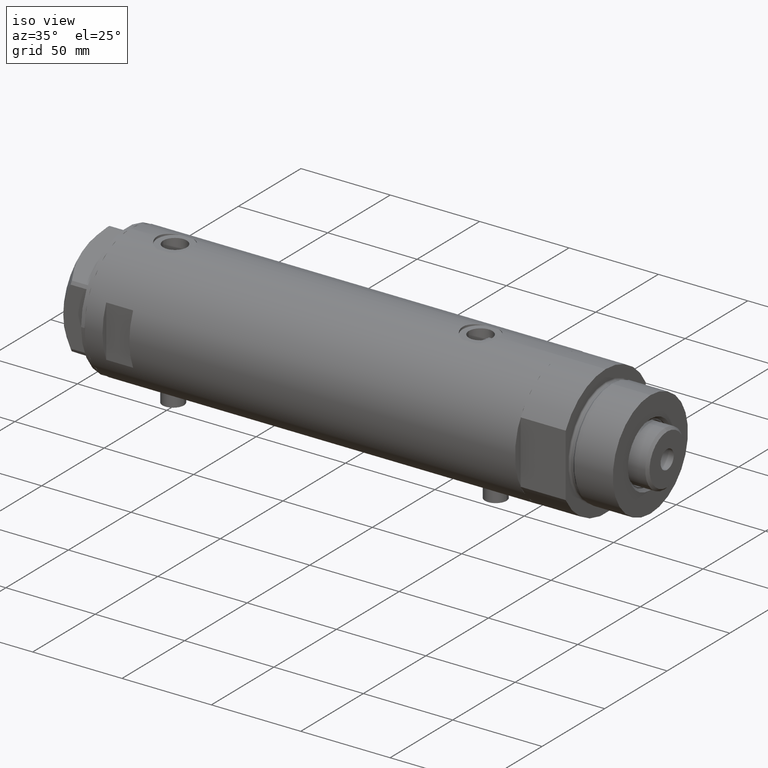
[diagram: clean part render]
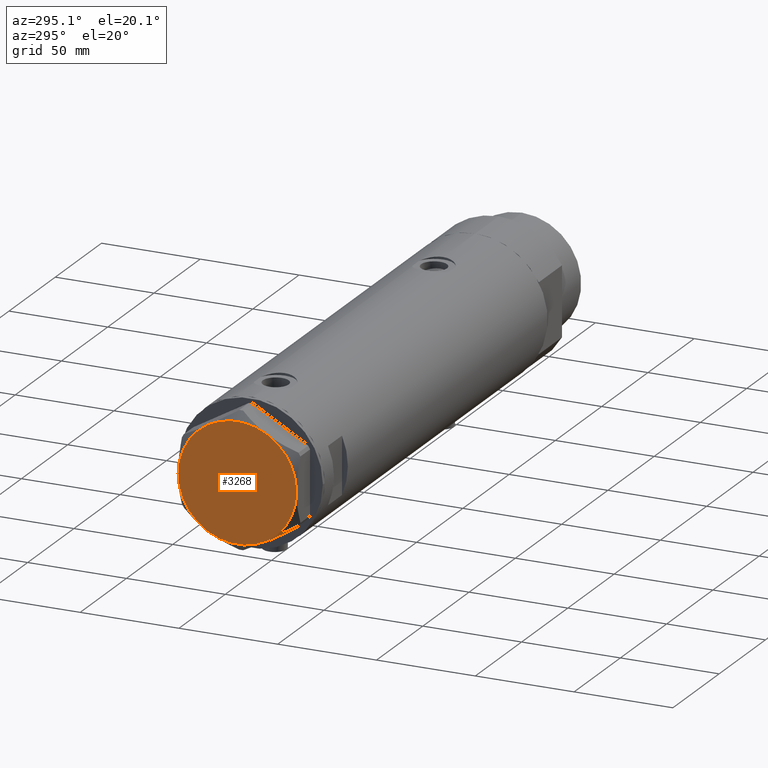
[diagram: tour spotlight — one face highlighted and labeled with its STEP entity id]
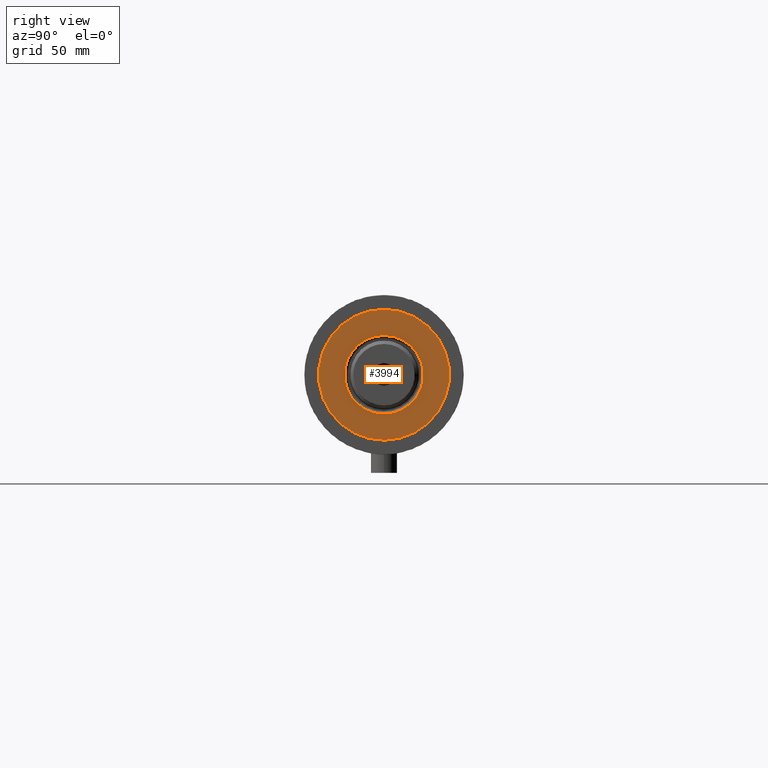
[diagram: tour spotlight — one face highlighted and labeled with its STEP entity id]
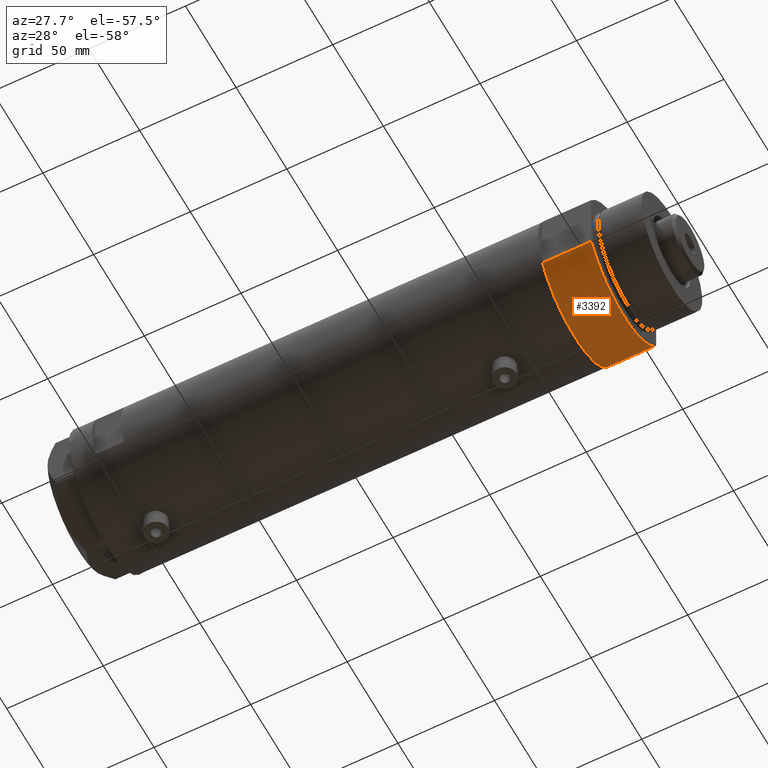
[diagram: tour spotlight — one face highlighted and labeled with its STEP entity id]
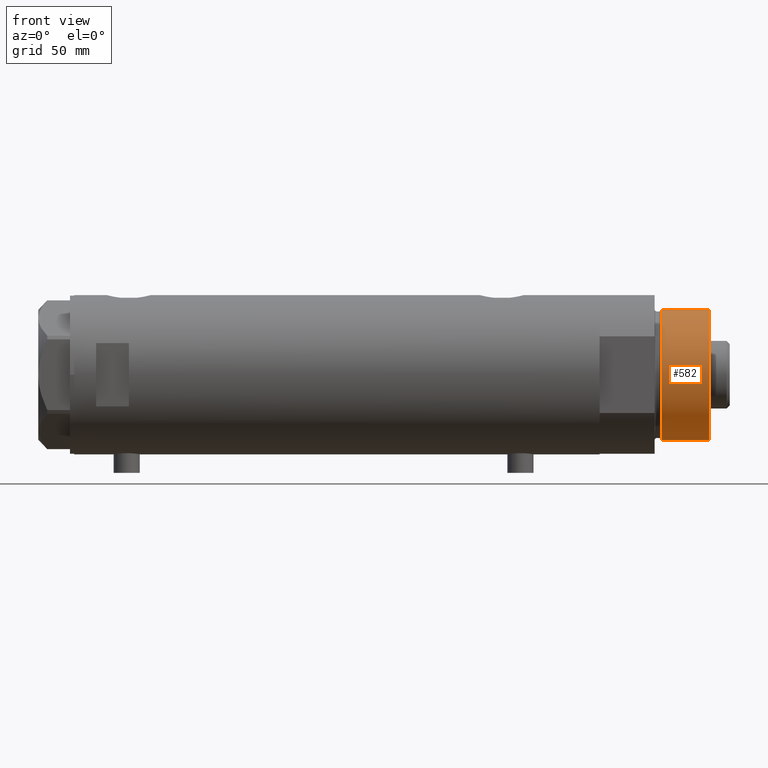
[diagram: tour spotlight — one face highlighted and labeled with its STEP entity id]
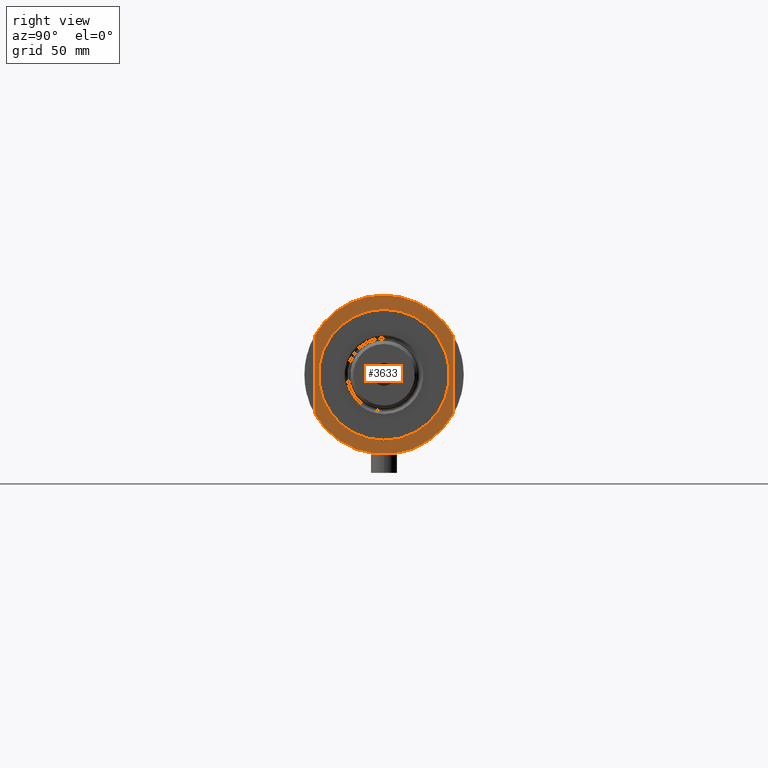
[diagram: tour spotlight — one face highlighted and labeled with its STEP entity id]
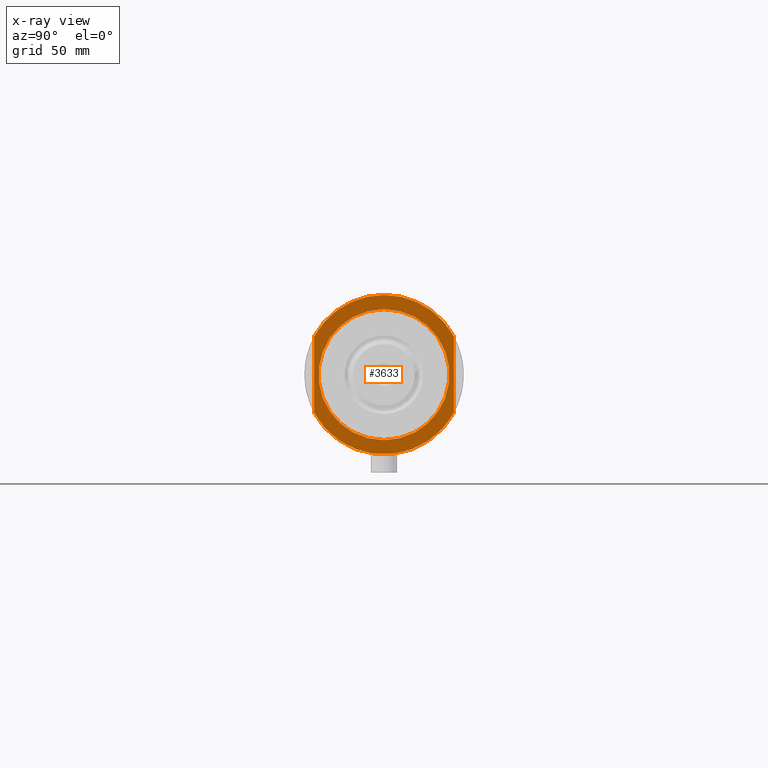
[diagram: x-ray of the same camera — body ghosted, this tour face saturated]
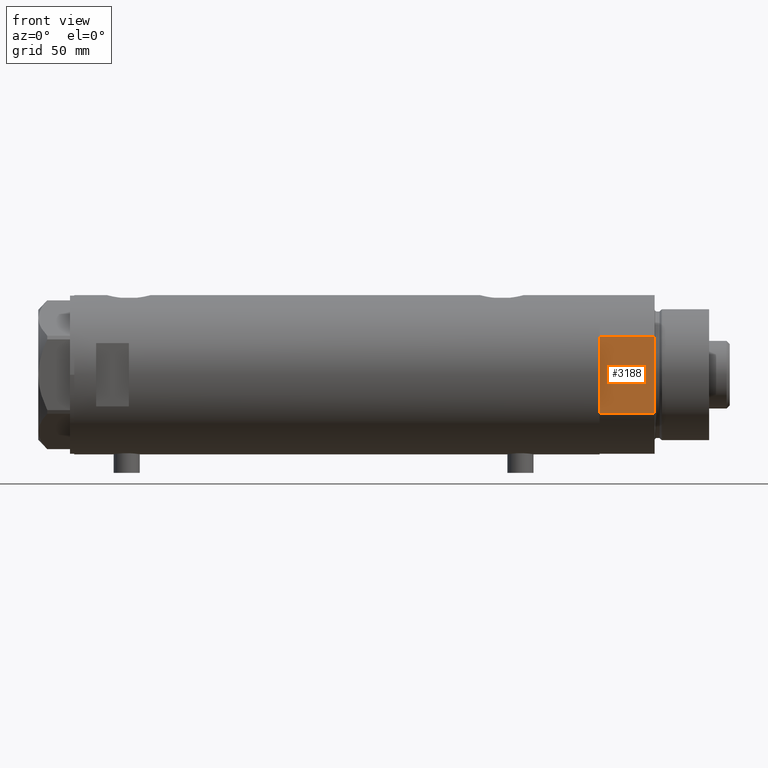
[diagram: tour spotlight — one face highlighted and labeled with its STEP entity id]
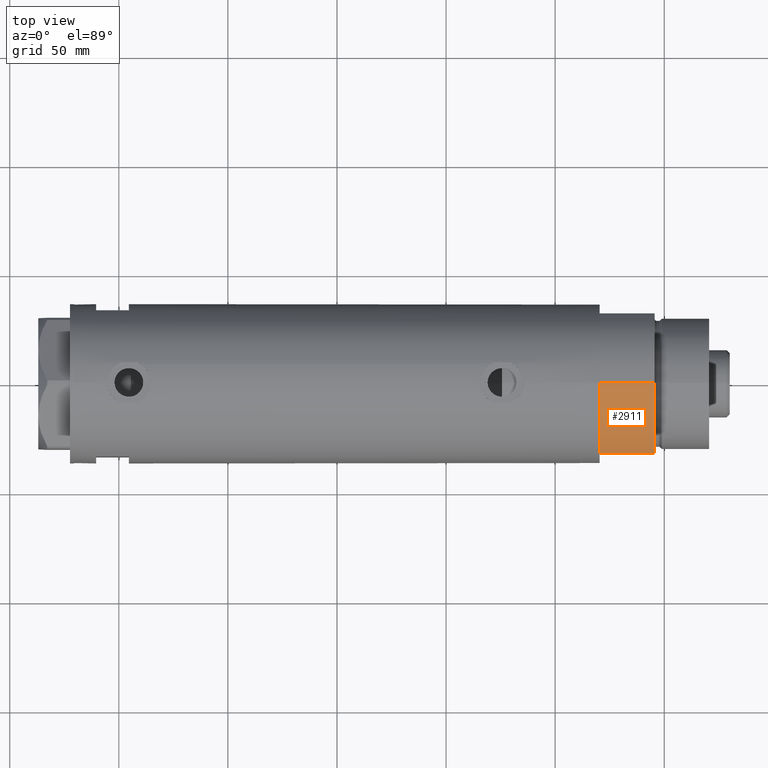
[diagram: tour spotlight — one face highlighted and labeled with its STEP entity id]
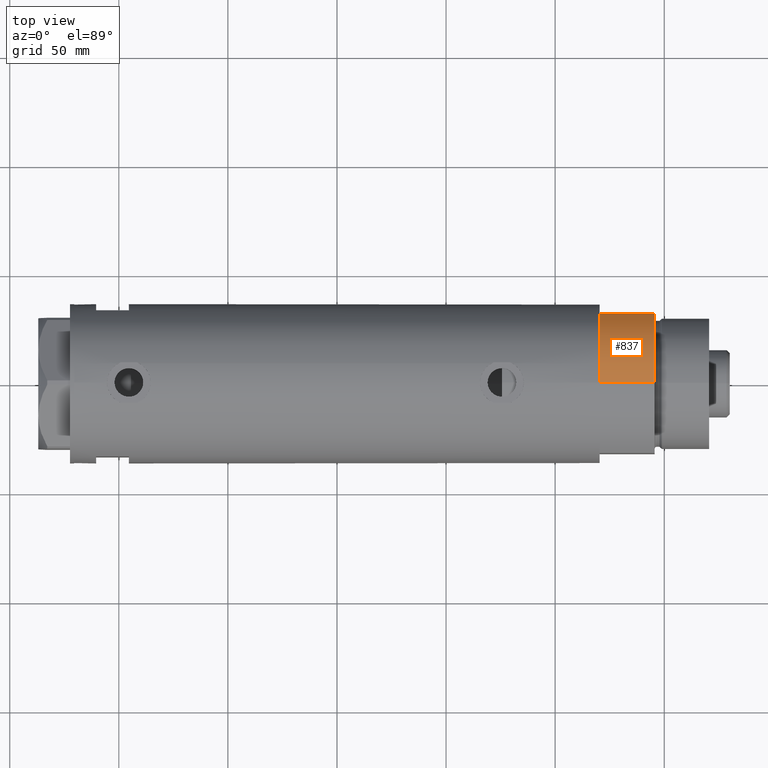
[diagram: tour spotlight — one face highlighted and labeled with its STEP entity id]
A machine part: a face-by-face anatomy tour. The part has 125 B-rep faces; the first image is the clean iso view, then the 8 largest visible faces are spotlighted one at a time (largest first), each with its STEP entity span.

Face 1 — auxiliary view, entity #3268. In plain terms, the highlighted planar face has unit normal (-1, -0, 0).
Definition (entity closure, byte-faithful):
#46 = ORIENTED_EDGE ( 'NONE', *, *, #2209, .T. ) ;
#139 = DIRECTION ( 'NONE',  ( 0.000000000000000000, 0.000000000000000000, 1.000000000000000000 ) ) ;
#252 = DIRECTION ( 'NONE',  ( 1.000000000000000000, 0.000000000000000000, 0.000000000000000000 ) ) ;
#454 = EDGE_CURVE ( 'NONE', #4172, #3018, #2763, .T. ) ;
#562 = DIRECTION ( 'NONE',  ( 0.000000000000000000, 0.000000000000000000, 1.000000000000000000 ) ) ;
#598 = DIRECTION ( 'NONE',  ( 1.000000000000000000, 0.000000000000000000, 0.000000000000000000 ) ) ;
#657 = AXIS2_PLACEMENT_3D ( 'NONE', #4175, #139, #598 ) ;
#704 = DIRECTION ( 'NONE',  ( 1.000000000000000000, 0.000000000000000000, 0.000000000000000000 ) ) ;
#715 = DIRECTION ( 'NONE',  ( 1.000000000000000000, 0.000000000000000000, -0.000000000000000000 ) ) ;
#810 = PLANE ( 'NONE',  #4206 ) ;
#900 = VERTEX_POINT ( 'NONE', #1371 ) ;
#937 = DIRECTION ( 'NONE',  ( 0.000000000000000000, 0.000000000000000000, 1.000000000000000000 ) ) ;
#953 = CARTESIAN_POINT ( 'NONE',  ( 30.00000000000000000, 9.013887592422954582E-15, 14.50000000000000000 ) ) ;
#1056 = AXIS2_PLACEMENT_3D ( 'NONE', #4607, #2429, #2381 ) ;
#1232 = ORIENTED_EDGE ( 'NONE', *, *, #454, .T. ) ;
#1270 = CIRCLE ( 'NONE', #3518, 30.00000000000000000 ) ;
#1284 = VERTEX_POINT ( 'NONE', #3390 ) ;
#1298 = EDGE_CURVE ( 'NONE', #1284, #4172, #2842, .T. ) ;
#1371 = CARTESIAN_POINT ( 'NONE',  ( -14.99999999999999645, -25.98076211353316367, 14.50000000000000000 ) ) ;
#1374 = AXIS2_PLACEMENT_3D ( 'NONE', #3853, #937, #2012 ) ;
#1449 = AXIS2_PLACEMENT_3D ( 'NONE', #4031, #3326, #704 ) ;
#1609 = ORIENTED_EDGE ( 'NONE', *, *, #1298, .T. ) ;
#1705 = DIRECTION ( 'NONE',  ( 1.000000000000000000, 0.000000000000000000, 0.000000000000000000 ) ) ;
#1755 = ORIENTED_EDGE ( 'NONE', *, *, #1854, .T. ) ;
#1797 = CARTESIAN_POINT ( 'NONE',  ( -30.00000000000000000, 0.000000000000000000, 14.50000000000000000 ) ) ;
#1854 = EDGE_CURVE ( 'NONE', #900, #1284, #4003, .T. ) ;
#1884 = CARTESIAN_POINT ( 'NONE',  ( 0.000000000000000000, 0.000000000000000000, 14.50000000000000000 ) ) ;
#2012 = DIRECTION ( 'NONE',  ( 1.000000000000000000, 0.000000000000000000, 0.000000000000000000 ) ) ;
#2166 = VERTEX_POINT ( 'NONE', #1797 ) ;
#2190 = CIRCLE ( 'NONE', #4588, 30.00000000000000000 ) ;
#2209 = EDGE_CURVE ( 'NONE', #2166, #900, #2190, .T. ) ;
#2358 = CARTESIAN_POINT ( 'NONE',  ( 0.000000000000000000, 0.000000000000000000, 14.50000000000000000 ) ) ;
#2381 = DIRECTION ( 'NONE',  ( 1.000000000000000000, 0.000000000000000000, 0.000000000000000000 ) ) ;
#2429 = DIRECTION ( 'NONE',  ( 0.000000000000000000, 0.000000000000000000, 1.000000000000000000 ) ) ;
#2521 = CARTESIAN_POINT ( 'NONE',  ( 0.000000000000000000, 0.000000000000000000, 14.50000000000000000 ) ) ;
#2533 = CARTESIAN_POINT ( 'NONE',  ( -14.99999999999999645, 25.98076211353316367, 14.50000000000000000 ) ) ;
#2545 = VERTEX_POINT ( 'NONE', #2533 ) ;
#2656 = DIRECTION ( 'NONE',  ( 0.000000000000000000, 0.000000000000000000, 1.000000000000000000 ) ) ;
#2715 = ORIENTED_EDGE ( 'NONE', *, *, #4157, .T. ) ;
#2763 = CIRCLE ( 'NONE', #1449, 30.00000000000000000 ) ;
#2842 = CIRCLE ( 'NONE', #1056, 30.00000000000000000 ) ;
#2889 = CIRCLE ( 'NONE', #657, 30.00000000000000000 ) ;
#2998 = ORIENTED_EDGE ( 'NONE', *, *, #3094, .T. ) ;
#3018 = VERTEX_POINT ( 'NONE', #3755 ) ;
#3094 = EDGE_CURVE ( 'NONE', #3018, #2545, #1270, .T. ) ;
#3268 = ADVANCED_FACE ( 'NONE', ( #3316 ), #810, .T. ) ;
#3316 = FACE_OUTER_BOUND ( 'NONE', #4494, .T. ) ;
#3326 = DIRECTION ( 'NONE',  ( 0.000000000000000000, 0.000000000000000000, 1.000000000000000000 ) ) ;
#3390 = CARTESIAN_POINT ( 'NONE',  ( 14.99999999999998757, -25.98076211353316722, 14.50000000000000000 ) ) ;
#3518 = AXIS2_PLACEMENT_3D ( 'NONE', #2358, #562, #1705 ) ;
#3755 = CARTESIAN_POINT ( 'NONE',  ( 14.99999999999999467, 25.98076211353316367, 14.50000000000000000 ) ) ;
#3853 = CARTESIAN_POINT ( 'NONE',  ( 0.000000000000000000, 0.000000000000000000, 14.50000000000000000 ) ) ;
#4003 = CIRCLE ( 'NONE', #1374, 30.00000000000000000 ) ;
#4031 = CARTESIAN_POINT ( 'NONE',  ( 0.000000000000000000, 0.000000000000000000, 14.50000000000000000 ) ) ;
#4157 = EDGE_CURVE ( 'NONE', #2545, #2166, #2889, .T. ) ;
#4172 = VERTEX_POINT ( 'NONE', #953 ) ;
#4175 = CARTESIAN_POINT ( 'NONE',  ( 0.000000000000000000, 0.000000000000000000, 14.50000000000000000 ) ) ;
#4206 = AXIS2_PLACEMENT_3D ( 'NONE', #1884, #2656, #715 ) ;
#4494 = EDGE_LOOP ( 'NONE', ( #1609, #1232, #2998, #2715, #46, #1755 ) ) ;
#4588 = AXIS2_PLACEMENT_3D ( 'NONE', #2521, #4727, #252 ) ;
#4607 = CARTESIAN_POINT ( 'NONE',  ( 0.000000000000000000, 0.000000000000000000, 14.50000000000000000 ) ) ;
#4727 = DIRECTION ( 'NONE',  ( 0.000000000000000000, 0.000000000000000000, 1.000000000000000000 ) ) ;

Face 2 — right view, entity #3994. In plain terms, the highlighted planar face has unit normal (1, 0, -0).
Definition (entity closure, byte-faithful):
#65 = CARTESIAN_POINT ( 'NONE',  ( -30.00000000000000000, 0.000000000000000000, 50.19999999999999574 ) ) ;
#111 = EDGE_CURVE ( 'NONE', #589, #585, #1762, .T. ) ;
#203 = AXIS2_PLACEMENT_3D ( 'NONE', #725, #4326, #2308 ) ;
#376 = DIRECTION ( 'NONE',  ( 0.000000000000000000, 0.000000000000000000, 1.000000000000000000 ) ) ;
#415 = DIRECTION ( 'NONE',  ( -0.000000000000000000, -0.000000000000000000, -1.000000000000000000 ) ) ;
#488 = ORIENTED_EDGE ( 'NONE', *, *, #1055, .T. ) ;
#566 = CIRCLE ( 'NONE', #3273, 18.04999999999996874 ) ;
#585 = VERTEX_POINT ( 'NONE', #65 ) ;
#589 = VERTEX_POINT ( 'NONE', #4118 ) ;
#725 = CARTESIAN_POINT ( 'NONE',  ( 0.000000000000000000, 0.000000000000000000, 50.19999999999999574 ) ) ;
#730 = DIRECTION ( 'NONE',  ( 1.000000000000000000, 0.000000000000000000, -0.000000000000000000 ) ) ;
#749 = DIRECTION ( 'NONE',  ( 0.000000000000000000, 0.000000000000000000, 1.000000000000000000 ) ) ;
#971 = CARTESIAN_POINT ( 'NONE',  ( -18.04999999999996874, 2.210487472460968951E-15, 50.19999999999999574 ) ) ;
#1055 = EDGE_CURVE ( 'NONE', #585, #589, #4320, .T. ) ;
#1276 = CIRCLE ( 'NONE', #203, 18.04999999999996874 ) ;
#1516 = AXIS2_PLACEMENT_3D ( 'NONE', #3873, #4594, #3067 ) ;
#1762 = CIRCLE ( 'NONE', #1516, 30.00000000000000000 ) ;
#1924 = CARTESIAN_POINT ( 'NONE',  ( 0.000000000000000000, 0.000000000000000000, 50.19999999999999574 ) ) ;
#1977 = AXIS2_PLACEMENT_3D ( 'NONE', #4054, #376, #730 ) ;
#2111 = EDGE_LOOP ( 'NONE', ( #4712, #3636 ) ) ;
#2180 = EDGE_LOOP ( 'NONE', ( #488, #4137 ) ) ;
#2193 = FACE_BOUND ( 'NONE', #2111, .T. ) ;
#2206 = VERTEX_POINT ( 'NONE', #971 ) ;
#2302 = AXIS2_PLACEMENT_3D ( 'NONE', #4391, #749, #4009 ) ;
#2308 = DIRECTION ( 'NONE',  ( 1.000000000000000000, 0.000000000000000000, 0.000000000000000000 ) ) ;
#2314 = CARTESIAN_POINT ( 'NONE',  ( 18.04999999999996874, 0.000000000000000000, 50.19999999999999574 ) ) ;
#2575 = PLANE ( 'NONE',  #1977 ) ;
#2615 = EDGE_CURVE ( 'NONE', #4055, #2206, #566, .T. ) ;
#2891 = EDGE_CURVE ( 'NONE', #2206, #4055, #1276, .T. ) ;
#3067 = DIRECTION ( 'NONE',  ( 1.000000000000000000, 0.000000000000000000, 0.000000000000000000 ) ) ;
#3273 = AXIS2_PLACEMENT_3D ( 'NONE', #1924, #415, #4075 ) ;
#3636 = ORIENTED_EDGE ( 'NONE', *, *, #2891, .T. ) ;
#3673 = FACE_OUTER_BOUND ( 'NONE', #2180, .T. ) ;
#3873 = CARTESIAN_POINT ( 'NONE',  ( 0.000000000000000000, 0.000000000000000000, 50.19999999999999574 ) ) ;
#3994 = ADVANCED_FACE ( 'NONE', ( #2193, #3673 ), #2575, .T. ) ;
#4009 = DIRECTION ( 'NONE',  ( 1.000000000000000000, 0.000000000000000000, 0.000000000000000000 ) ) ;
#4054 = CARTESIAN_POINT ( 'NONE',  ( 0.000000000000000000, 0.000000000000000000, 50.19999999999999574 ) ) ;
#4055 = VERTEX_POINT ( 'NONE', #2314 ) ;
#4075 = DIRECTION ( 'NONE',  ( 1.000000000000000000, 0.000000000000000000, 0.000000000000000000 ) ) ;
#4118 = CARTESIAN_POINT ( 'NONE',  ( 30.00000000000000000, 3.673940397442058389E-15, 50.19999999999999574 ) ) ;
#4137 = ORIENTED_EDGE ( 'NONE', *, *, #111, .T. ) ;
#4320 = CIRCLE ( 'NONE', #2302, 30.00000000000000000 ) ;
#4326 = DIRECTION ( 'NONE',  ( -0.000000000000000000, -0.000000000000000000, -1.000000000000000000 ) ) ;
#4391 = CARTESIAN_POINT ( 'NONE',  ( 0.000000000000000000, 0.000000000000000000, 50.19999999999999574 ) ) ;
#4594 = DIRECTION ( 'NONE',  ( 0.000000000000000000, 0.000000000000000000, 1.000000000000000000 ) ) ;
#4712 = ORIENTED_EDGE ( 'NONE', *, *, #2615, .T. ) ;

Face 3 — auxiliary view, entity #3392. In plain terms, the highlighted cylindrical surface (partial cylindrical patch) has radius 36.5 mm, axis along (-1, -0, 0).
Definition (entity closure, byte-faithful):
#192 = AXIS2_PLACEMENT_3D ( 'NONE', #720, #2884, #2524 ) ;
#240 = DIRECTION ( 'NONE',  ( -0.000000000000000000, -0.000000000000000000, 1.000000000000000000 ) ) ;
#363 = CYLINDRICAL_SURFACE ( 'NONE', #1104, 36.50000000000000000 ) ;
#382 = DIRECTION ( 'NONE',  ( -0.000000000000000000, -0.000000000000000000, -1.000000000000000000 ) ) ;
#461 = ORIENTED_EDGE ( 'NONE', *, *, #4127, .T. ) ;
#720 = CARTESIAN_POINT ( 'NONE',  ( 0.000000000000000000, 0.000000000000000000, 25.19999999999999929 ) ) ;
#746 = EDGE_CURVE ( 'NONE', #2478, #2568, #2050, .T. ) ;
#776 = DIRECTION ( 'NONE',  ( 1.000000000000000000, 0.000000000000000000, 0.000000000000000000 ) ) ;
#1101 = CARTESIAN_POINT ( 'NONE',  ( 17.55704986607943496, 32.00000000000000000, 0.000000000000000000 ) ) ;
#1102 = CARTESIAN_POINT ( 'NONE',  ( 0.000000000000000000, 0.000000000000000000, 25.19999999999999929 ) ) ;
#1103 = VECTOR ( 'NONE', #2283, 1000.000000000000000 ) ;
#1104 = AXIS2_PLACEMENT_3D ( 'NONE', #1102, #382, #1861 ) ;
#1220 = CARTESIAN_POINT ( 'NONE',  ( 0.000000000000000000, 0.000000000000000000, 0.000000000000000000 ) ) ;
#1388 = ORIENTED_EDGE ( 'NONE', *, *, #4670, .F. ) ;
#1521 = VERTEX_POINT ( 'NONE', #1101 ) ;
#1581 = LINE ( 'NONE', #3444, #1103 ) ;
#1652 = VERTEX_POINT ( 'NONE', #2685 ) ;
#1861 = DIRECTION ( 'NONE',  ( -1.000000000000000000, 0.000000000000000000, 0.000000000000000000 ) ) ;
#2050 = LINE ( 'NONE', #4664, #4077 ) ;
#2194 = CIRCLE ( 'NONE', #192, 36.50000000000000000 ) ;
#2283 = DIRECTION ( 'NONE',  ( -0.000000000000000000, -0.000000000000000000, 1.000000000000000000 ) ) ;
#2346 = EDGE_LOOP ( 'NONE', ( #1388, #3785, #461, #4024 ) ) ;
#2478 = VERTEX_POINT ( 'NONE', #3240 ) ;
#2524 = DIRECTION ( 'NONE',  ( 1.000000000000000000, 0.000000000000000000, 0.000000000000000000 ) ) ;
#2565 = FACE_OUTER_BOUND ( 'NONE', #2346, .T. ) ;
#2568 = VERTEX_POINT ( 'NONE', #4537 ) ;
#2685 = CARTESIAN_POINT ( 'NONE',  ( 17.55704986607943496, 32.00000000000000000, 25.19999999999999929 ) ) ;
#2884 = DIRECTION ( 'NONE',  ( 0.000000000000000000, 0.000000000000000000, 1.000000000000000000 ) ) ;
#3240 = CARTESIAN_POINT ( 'NONE',  ( 17.55704986607943141, -32.00000000000000000, 0.000000000000000000 ) ) ;
#3392 = ADVANCED_FACE ( 'NONE', ( #2565 ), #363, .T. ) ;
#3444 = CARTESIAN_POINT ( 'NONE',  ( 17.55704986607943141, 32.00000000000000000, 0.000000000000000000 ) ) ;
#3785 = ORIENTED_EDGE ( 'NONE', *, *, #746, .F. ) ;
#4024 = ORIENTED_EDGE ( 'NONE', *, *, #4484, .T. ) ;
#4056 = CIRCLE ( 'NONE', #4362, 36.50000000000000000 ) ;
#4077 = VECTOR ( 'NONE', #240, 1000.000000000000000 ) ;
#4098 = DIRECTION ( 'NONE',  ( 0.000000000000000000, 0.000000000000000000, 1.000000000000000000 ) ) ;
#4127 = EDGE_CURVE ( 'NONE', #2478, #1521, #4056, .T. ) ;
#4362 = AXIS2_PLACEMENT_3D ( 'NONE', #1220, #4098, #776 ) ;
#4484 = EDGE_CURVE ( 'NONE', #1521, #1652, #1581, .T. ) ;
#4537 = CARTESIAN_POINT ( 'NONE',  ( 17.55704986607943496, -32.00000000000000000, 25.19999999999999929 ) ) ;
#4664 = CARTESIAN_POINT ( 'NONE',  ( 17.55704986607943141, -32.00000000000000000, 0.000000000000000000 ) ) ;
#4670 = EDGE_CURVE ( 'NONE', #2568, #1652, #2194, .T. ) ;

Face 4 — front view, entity #582. In plain terms, the highlighted cylindrical surface (partial cylindrical patch) has radius 30 mm, axis along (-1, -0, 0).
Definition (entity closure, byte-faithful):
#65 = CARTESIAN_POINT ( 'NONE',  ( -30.00000000000000000, 0.000000000000000000, 50.19999999999999574 ) ) ;
#86 = FACE_OUTER_BOUND ( 'NONE', #1724, .T. ) ;
#282 = DIRECTION ( 'NONE',  ( -0.000000000000000000, -0.000000000000000000, -1.000000000000000000 ) ) ;
#299 = ORIENTED_EDGE ( 'NONE', *, *, #4728, .F. ) ;
#464 = EDGE_CURVE ( 'NONE', #585, #1903, #2574, .T. ) ;
#521 = DIRECTION ( 'NONE',  ( -1.000000000000000000, 0.000000000000000000, 0.000000000000000000 ) ) ;
#544 = CARTESIAN_POINT ( 'NONE',  ( 0.000000000000000000, 0.000000000000000000, 50.19999999999999574 ) ) ;
#582 = ADVANCED_FACE ( 'NONE', ( #86 ), #3396, .T. ) ;
#585 = VERTEX_POINT ( 'NONE', #65 ) ;
#589 = VERTEX_POINT ( 'NONE', #4118 ) ;
#749 = DIRECTION ( 'NONE',  ( 0.000000000000000000, 0.000000000000000000, 1.000000000000000000 ) ) ;
#1019 = EDGE_CURVE ( 'NONE', #1903, #3428, #3624, .T. ) ;
#1055 = EDGE_CURVE ( 'NONE', #585, #589, #4320, .T. ) ;
#1257 = ORIENTED_EDGE ( 'NONE', *, *, #464, .T. ) ;
#1303 = AXIS2_PLACEMENT_3D ( 'NONE', #4070, #4776, #2617 ) ;
#1482 = DIRECTION ( 'NONE',  ( -0.000000000000000000, -0.000000000000000000, -1.000000000000000000 ) ) ;
#1670 = CARTESIAN_POINT ( 'NONE',  ( -30.00000000000000000, 0.000000000000000000, 28.57384048104054486 ) ) ;
#1724 = EDGE_LOOP ( 'NONE', ( #299, #2027, #1257, #2789 ) ) ;
#1903 = VERTEX_POINT ( 'NONE', #1670 ) ;
#2027 = ORIENTED_EDGE ( 'NONE', *, *, #1055, .F. ) ;
#2207 = CARTESIAN_POINT ( 'NONE',  ( 30.00000000000000000, 3.673940397442058389E-15, 50.19999999999999574 ) ) ;
#2297 = AXIS2_PLACEMENT_3D ( 'NONE', #544, #2391, #521 ) ;
#2302 = AXIS2_PLACEMENT_3D ( 'NONE', #4391, #749, #4009 ) ;
#2391 = DIRECTION ( 'NONE',  ( -0.000000000000000000, -0.000000000000000000, -1.000000000000000000 ) ) ;
#2498 = LINE ( 'NONE', #2207, #3040 ) ;
#2574 = LINE ( 'NONE', #4051, #4386 ) ;
#2617 = DIRECTION ( 'NONE',  ( 1.000000000000000000, 0.000000000000000000, 0.000000000000000000 ) ) ;
#2789 = ORIENTED_EDGE ( 'NONE', *, *, #1019, .T. ) ;
#3040 = VECTOR ( 'NONE', #282, 1000.000000000000000 ) ;
#3396 = CYLINDRICAL_SURFACE ( 'NONE', #2297, 30.00000000000000000 ) ;
#3428 = VERTEX_POINT ( 'NONE', #4599 ) ;
#3624 = CIRCLE ( 'NONE', #1303, 30.00000000000000000 ) ;
#4009 = DIRECTION ( 'NONE',  ( 1.000000000000000000, 0.000000000000000000, 0.000000000000000000 ) ) ;
#4051 = CARTESIAN_POINT ( 'NONE',  ( -30.00000000000000000, 0.000000000000000000, 50.19999999999999574 ) ) ;
#4070 = CARTESIAN_POINT ( 'NONE',  ( 0.000000000000000000, 0.000000000000000000, 28.57384048104054486 ) ) ;
#4118 = CARTESIAN_POINT ( 'NONE',  ( 30.00000000000000000, 3.673940397442058389E-15, 50.19999999999999574 ) ) ;
#4320 = CIRCLE ( 'NONE', #2302, 30.00000000000000000 ) ;
#4386 = VECTOR ( 'NONE', #1482, 1000.000000000000000 ) ;
#4391 = CARTESIAN_POINT ( 'NONE',  ( 0.000000000000000000, 0.000000000000000000, 50.19999999999999574 ) ) ;
#4599 = CARTESIAN_POINT ( 'NONE',  ( 30.00000000000000000, 3.673940397442058389E-15, 28.57384048104054486 ) ) ;
#4728 = EDGE_CURVE ( 'NONE', #589, #3428, #2498, .T. ) ;
#4776 = DIRECTION ( 'NONE',  ( -0.000000000000000000, -0.000000000000000000, 1.000000000000000000 ) ) ;

Face 5 — right view, entity #3633. An x-ray twin of the same camera follows (body ghosted, this face saturated) — the face is partly hidden behind the body. In plain terms, the highlighted planar face has unit normal (1, 0, -0).
Definition (entity closure, byte-faithful):
#192 = AXIS2_PLACEMENT_3D ( 'NONE', #720, #2884, #2524 ) ;
#205 = DIRECTION ( 'NONE',  ( 1.000000000000000000, 0.000000000000000000, 0.000000000000000000 ) ) ;
#254 = VERTEX_POINT ( 'NONE', #1351 ) ;
#275 = CARTESIAN_POINT ( 'NONE',  ( 0.000000000000000000, 0.000000000000000000, 25.19999999999999929 ) ) ;
#292 = DIRECTION ( 'NONE',  ( 1.000000000000000000, 0.000000000000000000, 0.000000000000000000 ) ) ;
#320 = ORIENTED_EDGE ( 'NONE', *, *, #2614, .F. ) ;
#556 = EDGE_LOOP ( 'NONE', ( #4636, #1649 ) ) ;
#560 = CARTESIAN_POINT ( 'NONE',  ( -17.55704986607943496, -32.00000000000000000, 25.19999999999999929 ) ) ;
#581 = AXIS2_PLACEMENT_3D ( 'NONE', #3194, #1253, #292 ) ;
#719 = ORIENTED_EDGE ( 'NONE', *, *, #1225, .F. ) ;
#720 = CARTESIAN_POINT ( 'NONE',  ( 0.000000000000000000, 0.000000000000000000, 25.19999999999999929 ) ) ;
#785 = DIRECTION ( 'NONE',  ( 1.000000000000000000, 0.000000000000000000, -0.000000000000000000 ) ) ;
#1131 = FACE_OUTER_BOUND ( 'NONE', #1939, .T. ) ;
#1161 = DIRECTION ( 'NONE',  ( -1.000000000000000000, -0.000000000000000000, -0.000000000000000000 ) ) ;
#1225 = EDGE_CURVE ( 'NONE', #3539, #1652, #3079, .T. ) ;
#1253 = DIRECTION ( 'NONE',  ( 0.000000000000000000, 0.000000000000000000, 1.000000000000000000 ) ) ;
#1265 = VERTEX_POINT ( 'NONE', #1920 ) ;
#1305 = VERTEX_POINT ( 'NONE', #1725 ) ;
#1351 = CARTESIAN_POINT ( 'NONE',  ( 30.00000000000000355, 0.000000000000000000, 25.19999999999999929 ) ) ;
#1356 = EDGE_CURVE ( 'NONE', #1265, #254, #2525, .T. ) ;
#1380 = DIRECTION ( 'NONE',  ( 1.000000000000000000, 0.000000000000000000, 0.000000000000000000 ) ) ;
#1400 = DIRECTION ( 'NONE',  ( -0.000000000000000000, -0.000000000000000000, -1.000000000000000000 ) ) ;
#1587 = AXIS2_PLACEMENT_3D ( 'NONE', #4697, #1400, #1380 ) ;
#1649 = ORIENTED_EDGE ( 'NONE', *, *, #1356, .T. ) ;
#1652 = VERTEX_POINT ( 'NONE', #2685 ) ;
#1725 = CARTESIAN_POINT ( 'NONE',  ( -36.50000000000000000, 0.000000000000000000, 25.19999999999999929 ) ) ;
#1886 = FACE_BOUND ( 'NONE', #556, .T. ) ;
#1891 = CIRCLE ( 'NONE', #581, 36.50000000000000000 ) ;
#1892 = DIRECTION ( 'NONE',  ( 1.000000000000000000, 0.000000000000000000, 0.000000000000000000 ) ) ;
#1920 = CARTESIAN_POINT ( 'NONE',  ( -30.00000000000000355, 3.673940397442059178E-15, 25.19999999999999929 ) ) ;
#1935 = DIRECTION ( 'NONE',  ( 0.000000000000000000, 0.000000000000000000, 1.000000000000000000 ) ) ;
#1939 = EDGE_LOOP ( 'NONE', ( #320, #4254, #719, #4592, #2792 ) ) ;
#1975 = CARTESIAN_POINT ( 'NONE',  ( -17.55704986607943141, -32.00000000000000000, 25.19999999999999929 ) ) ;
#2039 = VERTEX_POINT ( 'NONE', #560 ) ;
#2194 = CIRCLE ( 'NONE', #192, 36.50000000000000000 ) ;
#2442 = CIRCLE ( 'NONE', #1587, 30.00000000000000355 ) ;
#2524 = DIRECTION ( 'NONE',  ( 1.000000000000000000, 0.000000000000000000, 0.000000000000000000 ) ) ;
#2525 = CIRCLE ( 'NONE', #3922, 30.00000000000000355 ) ;
#2568 = VERTEX_POINT ( 'NONE', #4537 ) ;
#2614 = EDGE_CURVE ( 'NONE', #2568, #2039, #4147, .T. ) ;
#2618 = CARTESIAN_POINT ( 'NONE',  ( 0.000000000000000000, 0.000000000000000000, 25.19999999999999929 ) ) ;
#2633 = PLANE ( 'NONE',  #4758 ) ;
#2659 = CARTESIAN_POINT ( 'NONE',  ( 0.000000000000000000, 0.000000000000000000, 25.19999999999999929 ) ) ;
#2665 = DIRECTION ( 'NONE',  ( 0.000000000000000000, 0.000000000000000000, 1.000000000000000000 ) ) ;
#2685 = CARTESIAN_POINT ( 'NONE',  ( 17.55704986607943496, 32.00000000000000000, 25.19999999999999929 ) ) ;
#2792 = ORIENTED_EDGE ( 'NONE', *, *, #3775, .T. ) ;
#2884 = DIRECTION ( 'NONE',  ( 0.000000000000000000, 0.000000000000000000, 1.000000000000000000 ) ) ;
#3005 = EDGE_CURVE ( 'NONE', #3539, #1305, #3350, .T. ) ;
#3026 = DIRECTION ( 'NONE',  ( 1.000000000000000000, 0.000000000000000000, 0.000000000000000000 ) ) ;
#3079 = LINE ( 'NONE', #4557, #4618 ) ;
#3194 = CARTESIAN_POINT ( 'NONE',  ( 0.000000000000000000, 0.000000000000000000, 25.19999999999999929 ) ) ;
#3350 = CIRCLE ( 'NONE', #4518, 36.50000000000000000 ) ;
#3492 = DIRECTION ( 'NONE',  ( -0.000000000000000000, -0.000000000000000000, -1.000000000000000000 ) ) ;
#3539 = VERTEX_POINT ( 'NONE', #3997 ) ;
#3633 = ADVANCED_FACE ( 'NONE', ( #1886, #1131 ), #2633, .T. ) ;
#3741 = EDGE_CURVE ( 'NONE', #254, #1265, #2442, .T. ) ;
#3775 = EDGE_CURVE ( 'NONE', #1305, #2039, #1891, .T. ) ;
#3922 = AXIS2_PLACEMENT_3D ( 'NONE', #275, #3492, #205 ) ;
#3997 = CARTESIAN_POINT ( 'NONE',  ( -17.55704986607943496, 32.00000000000000000, 25.19999999999999929 ) ) ;
#4147 = LINE ( 'NONE', #1975, #4742 ) ;
#4254 = ORIENTED_EDGE ( 'NONE', *, *, #4670, .T. ) ;
#4518 = AXIS2_PLACEMENT_3D ( 'NONE', #2618, #2665, #3026 ) ;
#4537 = CARTESIAN_POINT ( 'NONE',  ( 17.55704986607943496, -32.00000000000000000, 25.19999999999999929 ) ) ;
#4557 = CARTESIAN_POINT ( 'NONE',  ( -17.55704986607943141, 32.00000000000000000, 25.19999999999999929 ) ) ;
#4592 = ORIENTED_EDGE ( 'NONE', *, *, #3005, .T. ) ;
#4618 = VECTOR ( 'NONE', #1892, 1000.000000000000000 ) ;
#4636 = ORIENTED_EDGE ( 'NONE', *, *, #3741, .T. ) ;
#4670 = EDGE_CURVE ( 'NONE', #2568, #1652, #2194, .T. ) ;
#4697 = CARTESIAN_POINT ( 'NONE',  ( 0.000000000000000000, 0.000000000000000000, 25.19999999999999929 ) ) ;
#4742 = VECTOR ( 'NONE', #1161, 1000.000000000000000 ) ;
#4758 = AXIS2_PLACEMENT_3D ( 'NONE', #2659, #1935, #785 ) ;

Face 6 — front view, entity #3188. In plain terms, the highlighted planar face has unit normal (-0, 1, 0).
Definition (entity closure, byte-faithful):
#110 = AXIS2_PLACEMENT_3D ( 'NONE', #1455, #341, #1820 ) ;
#123 = CARTESIAN_POINT ( 'NONE',  ( -17.55704986607943141, -32.00000000000000000, 0.000000000000000000 ) ) ;
#134 = EDGE_LOOP ( 'NONE', ( #2661, #2735, #731, #1751, #3893 ) ) ;
#240 = DIRECTION ( 'NONE',  ( -0.000000000000000000, -0.000000000000000000, 1.000000000000000000 ) ) ;
#279 = PLANE ( 'NONE',  #110 ) ;
#341 = DIRECTION ( 'NONE',  ( -0.000000000000000000, 1.000000000000000000, 0.000000000000000000 ) ) ;
#436 = VERTEX_POINT ( 'NONE', #4763 ) ;
#560 = CARTESIAN_POINT ( 'NONE',  ( -17.55704986607943496, -32.00000000000000000, 25.19999999999999929 ) ) ;
#731 = ORIENTED_EDGE ( 'NONE', *, *, #3776, .F. ) ;
#746 = EDGE_CURVE ( 'NONE', #2478, #2568, #2050, .T. ) ;
#1161 = DIRECTION ( 'NONE',  ( -1.000000000000000000, -0.000000000000000000, -0.000000000000000000 ) ) ;
#1358 = DIRECTION ( 'NONE',  ( -1.000000000000000000, -0.000000000000000000, -0.000000000000000000 ) ) ;
#1455 = CARTESIAN_POINT ( 'NONE',  ( -17.55704986607943141, -32.00000000000000000, 0.000000000000000000 ) ) ;
#1751 = ORIENTED_EDGE ( 'NONE', *, *, #1773, .F. ) ;
#1773 = EDGE_CURVE ( 'NONE', #2478, #3654, #4673, .T. ) ;
#1820 = DIRECTION ( 'NONE',  ( 0.000000000000000000, -0.000000000000000000, 1.000000000000000000 ) ) ;
#1975 = CARTESIAN_POINT ( 'NONE',  ( -17.55704986607943141, -32.00000000000000000, 25.19999999999999929 ) ) ;
#1989 = LINE ( 'NONE', #123, #3289 ) ;
#2038 = VECTOR ( 'NONE', #3419, 1000.000000000000000 ) ;
#2039 = VERTEX_POINT ( 'NONE', #560 ) ;
#2050 = LINE ( 'NONE', #4664, #4077 ) ;
#2478 = VERTEX_POINT ( 'NONE', #3240 ) ;
#2555 = EDGE_CURVE ( 'NONE', #436, #2039, #3060, .T. ) ;
#2568 = VERTEX_POINT ( 'NONE', #4537 ) ;
#2614 = EDGE_CURVE ( 'NONE', #2568, #2039, #4147, .T. ) ;
#2661 = ORIENTED_EDGE ( 'NONE', *, *, #2614, .T. ) ;
#2734 = DIRECTION ( 'NONE',  ( -1.000000000000000000, -0.000000000000000000, -0.000000000000000000 ) ) ;
#2735 = ORIENTED_EDGE ( 'NONE', *, *, #2555, .F. ) ;
#2806 = CARTESIAN_POINT ( 'NONE',  ( -17.55704986607943141, -32.00000000000000000, 0.000000000000000000 ) ) ;
#2863 = FACE_OUTER_BOUND ( 'NONE', #134, .T. ) ;
#3060 = LINE ( 'NONE', #3813, #2038 ) ;
#3188 = ADVANCED_FACE ( 'NONE', ( #2863 ), #279, .F. ) ;
#3240 = CARTESIAN_POINT ( 'NONE',  ( 17.55704986607943141, -32.00000000000000000, 0.000000000000000000 ) ) ;
#3289 = VECTOR ( 'NONE', #2734, 1000.000000000000000 ) ;
#3303 = VECTOR ( 'NONE', #1358, 1000.000000000000000 ) ;
#3419 = DIRECTION ( 'NONE',  ( -0.000000000000000000, -0.000000000000000000, 1.000000000000000000 ) ) ;
#3654 = VERTEX_POINT ( 'NONE', #4135 ) ;
#3776 = EDGE_CURVE ( 'NONE', #3654, #436, #1989, .T. ) ;
#3813 = CARTESIAN_POINT ( 'NONE',  ( -17.55704986607943141, -32.00000000000000000, 0.000000000000000000 ) ) ;
#3893 = ORIENTED_EDGE ( 'NONE', *, *, #746, .T. ) ;
#4077 = VECTOR ( 'NONE', #240, 1000.000000000000000 ) ;
#4135 = CARTESIAN_POINT ( 'NONE',  ( 0.000000000000000000, -32.00000000000000000, 0.000000000000000000 ) ) ;
#4147 = LINE ( 'NONE', #1975, #4742 ) ;
#4537 = CARTESIAN_POINT ( 'NONE',  ( 17.55704986607943496, -32.00000000000000000, 25.19999999999999929 ) ) ;
#4664 = CARTESIAN_POINT ( 'NONE',  ( 17.55704986607943141, -32.00000000000000000, 0.000000000000000000 ) ) ;
#4673 = LINE ( 'NONE', #2806, #3303 ) ;
#4742 = VECTOR ( 'NONE', #1161, 1000.000000000000000 ) ;
#4763 = CARTESIAN_POINT ( 'NONE',  ( -17.55704986607943496, -32.00000000000000000, 0.000000000000000000 ) ) ;

Face 7 — top view, entity #2911. In plain terms, the highlighted cylindrical surface (partial cylindrical patch) has radius 36.5 mm, axis along (-1, -0, 0).
Definition (entity closure, byte-faithful):
#30 = DIRECTION ( 'NONE',  ( -0.000000000000000000, -0.000000000000000000, -1.000000000000000000 ) ) ;
#195 = LINE ( 'NONE', #605, #3229 ) ;
#292 = DIRECTION ( 'NONE',  ( 1.000000000000000000, 0.000000000000000000, 0.000000000000000000 ) ) ;
#411 = DIRECTION ( 'NONE',  ( -1.000000000000000000, 0.000000000000000000, 0.000000000000000000 ) ) ;
#436 = VERTEX_POINT ( 'NONE', #4763 ) ;
#515 = DIRECTION ( 'NONE',  ( 1.000000000000000000, 0.000000000000000000, 0.000000000000000000 ) ) ;
#560 = CARTESIAN_POINT ( 'NONE',  ( -17.55704986607943496, -32.00000000000000000, 25.19999999999999929 ) ) ;
#581 = AXIS2_PLACEMENT_3D ( 'NONE', #3194, #1253, #292 ) ;
#605 = CARTESIAN_POINT ( 'NONE',  ( -36.50000000000000000, 0.000000000000000000, 25.19999999999999929 ) ) ;
#782 = ORIENTED_EDGE ( 'NONE', *, *, #3028, .T. ) ;
#961 = AXIS2_PLACEMENT_3D ( 'NONE', #1848, #30, #411 ) ;
#1182 = CARTESIAN_POINT ( 'NONE',  ( 0.000000000000000000, 0.000000000000000000, 0.000000000000000000 ) ) ;
#1253 = DIRECTION ( 'NONE',  ( 0.000000000000000000, 0.000000000000000000, 1.000000000000000000 ) ) ;
#1305 = VERTEX_POINT ( 'NONE', #1725 ) ;
#1621 = ORIENTED_EDGE ( 'NONE', *, *, #3775, .F. ) ;
#1725 = CARTESIAN_POINT ( 'NONE',  ( -36.50000000000000000, 0.000000000000000000, 25.19999999999999929 ) ) ;
#1800 = EDGE_CURVE ( 'NONE', #1305, #2069, #195, .T. ) ;
#1848 = CARTESIAN_POINT ( 'NONE',  ( 0.000000000000000000, 0.000000000000000000, 25.19999999999999929 ) ) ;
#1891 = CIRCLE ( 'NONE', #581, 36.50000000000000000 ) ;
#2038 = VECTOR ( 'NONE', #3419, 1000.000000000000000 ) ;
#2039 = VERTEX_POINT ( 'NONE', #560 ) ;
#2069 = VERTEX_POINT ( 'NONE', #2408 ) ;
#2129 = CIRCLE ( 'NONE', #4754, 36.50000000000000000 ) ;
#2284 = ORIENTED_EDGE ( 'NONE', *, *, #1800, .T. ) ;
#2333 = FACE_OUTER_BOUND ( 'NONE', #4143, .T. ) ;
#2408 = CARTESIAN_POINT ( 'NONE',  ( -36.50000000000000000, 0.000000000000000000, 0.000000000000000000 ) ) ;
#2555 = EDGE_CURVE ( 'NONE', #436, #2039, #3060, .T. ) ;
#2815 = DIRECTION ( 'NONE',  ( 0.000000000000000000, 0.000000000000000000, 1.000000000000000000 ) ) ;
#2911 = ADVANCED_FACE ( 'NONE', ( #2333 ), #4072, .T. ) ;
#3028 = EDGE_CURVE ( 'NONE', #2069, #436, #2129, .T. ) ;
#3060 = LINE ( 'NONE', #3813, #2038 ) ;
#3194 = CARTESIAN_POINT ( 'NONE',  ( 0.000000000000000000, 0.000000000000000000, 25.19999999999999929 ) ) ;
#3229 = VECTOR ( 'NONE', #3533, 1000.000000000000000 ) ;
#3419 = DIRECTION ( 'NONE',  ( -0.000000000000000000, -0.000000000000000000, 1.000000000000000000 ) ) ;
#3533 = DIRECTION ( 'NONE',  ( -0.000000000000000000, -0.000000000000000000, -1.000000000000000000 ) ) ;
#3775 = EDGE_CURVE ( 'NONE', #1305, #2039, #1891, .T. ) ;
#3813 = CARTESIAN_POINT ( 'NONE',  ( -17.55704986607943141, -32.00000000000000000, 0.000000000000000000 ) ) ;
#4072 = CYLINDRICAL_SURFACE ( 'NONE', #961, 36.50000000000000000 ) ;
#4143 = EDGE_LOOP ( 'NONE', ( #1621, #2284, #782, #4364 ) ) ;
#4364 = ORIENTED_EDGE ( 'NONE', *, *, #2555, .T. ) ;
#4754 = AXIS2_PLACEMENT_3D ( 'NONE', #1182, #2815, #515 ) ;
#4763 = CARTESIAN_POINT ( 'NONE',  ( -17.55704986607943496, -32.00000000000000000, 0.000000000000000000 ) ) ;

Face 8 — top view, entity #837. In plain terms, the highlighted cylindrical surface (partial cylindrical patch) has radius 36.5 mm, axis along (-1, -0, 0).
Definition (entity closure, byte-faithful):
#184 = CYLINDRICAL_SURFACE ( 'NONE', #747, 36.50000000000000000 ) ;
#195 = LINE ( 'NONE', #605, #3229 ) ;
#480 = DIRECTION ( 'NONE',  ( -0.000000000000000000, -0.000000000000000000, 1.000000000000000000 ) ) ;
#605 = CARTESIAN_POINT ( 'NONE',  ( -36.50000000000000000, 0.000000000000000000, 25.19999999999999929 ) ) ;
#638 = DIRECTION ( 'NONE',  ( 1.000000000000000000, 0.000000000000000000, 0.000000000000000000 ) ) ;
#688 = EDGE_CURVE ( 'NONE', #2225, #2069, #1213, .T. ) ;
#747 = AXIS2_PLACEMENT_3D ( 'NONE', #3888, #3165, #2775 ) ;
#837 = ADVANCED_FACE ( 'NONE', ( #1730 ), #184, .T. ) ;
#854 = ORIENTED_EDGE ( 'NONE', *, *, #688, .T. ) ;
#1041 = VECTOR ( 'NONE', #480, 1000.000000000000000 ) ;
#1213 = CIRCLE ( 'NONE', #2996, 36.50000000000000000 ) ;
#1305 = VERTEX_POINT ( 'NONE', #1725 ) ;
#1353 = LINE ( 'NONE', #3966, #1041 ) ;
#1625 = ORIENTED_EDGE ( 'NONE', *, *, #1800, .F. ) ;
#1711 = CARTESIAN_POINT ( 'NONE',  ( 0.000000000000000000, 0.000000000000000000, 0.000000000000000000 ) ) ;
#1725 = CARTESIAN_POINT ( 'NONE',  ( -36.50000000000000000, 0.000000000000000000, 25.19999999999999929 ) ) ;
#1730 = FACE_OUTER_BOUND ( 'NONE', #2409, .T. ) ;
#1759 = DIRECTION ( 'NONE',  ( 0.000000000000000000, 0.000000000000000000, 1.000000000000000000 ) ) ;
#1800 = EDGE_CURVE ( 'NONE', #1305, #2069, #195, .T. ) ;
#2069 = VERTEX_POINT ( 'NONE', #2408 ) ;
#2225 = VERTEX_POINT ( 'NONE', #2603 ) ;
#2330 = ORIENTED_EDGE ( 'NONE', *, *, #3769, .F. ) ;
#2408 = CARTESIAN_POINT ( 'NONE',  ( -36.50000000000000000, 0.000000000000000000, 0.000000000000000000 ) ) ;
#2409 = EDGE_LOOP ( 'NONE', ( #1625, #3056, #2330, #854 ) ) ;
#2603 = CARTESIAN_POINT ( 'NONE',  ( -17.55704986607943141, 32.00000000000000000, 0.000000000000000000 ) ) ;
#2618 = CARTESIAN_POINT ( 'NONE',  ( 0.000000000000000000, 0.000000000000000000, 25.19999999999999929 ) ) ;
#2665 = DIRECTION ( 'NONE',  ( 0.000000000000000000, 0.000000000000000000, 1.000000000000000000 ) ) ;
#2775 = DIRECTION ( 'NONE',  ( -1.000000000000000000, 0.000000000000000000, 0.000000000000000000 ) ) ;
#2996 = AXIS2_PLACEMENT_3D ( 'NONE', #1711, #1759, #638 ) ;
#3005 = EDGE_CURVE ( 'NONE', #3539, #1305, #3350, .T. ) ;
#3026 = DIRECTION ( 'NONE',  ( 1.000000000000000000, 0.000000000000000000, 0.000000000000000000 ) ) ;
#3056 = ORIENTED_EDGE ( 'NONE', *, *, #3005, .F. ) ;
#3165 = DIRECTION ( 'NONE',  ( -0.000000000000000000, -0.000000000000000000, -1.000000000000000000 ) ) ;
#3229 = VECTOR ( 'NONE', #3533, 1000.000000000000000 ) ;
#3350 = CIRCLE ( 'NONE', #4518, 36.50000000000000000 ) ;
#3533 = DIRECTION ( 'NONE',  ( -0.000000000000000000, -0.000000000000000000, -1.000000000000000000 ) ) ;
#3539 = VERTEX_POINT ( 'NONE', #3997 ) ;
#3769 = EDGE_CURVE ( 'NONE', #2225, #3539, #1353, .T. ) ;
#3888 = CARTESIAN_POINT ( 'NONE',  ( 0.000000000000000000, 0.000000000000000000, 25.19999999999999929 ) ) ;
#3966 = CARTESIAN_POINT ( 'NONE',  ( -17.55704986607943141, 32.00000000000000000, 0.000000000000000000 ) ) ;
#3997 = CARTESIAN_POINT ( 'NONE',  ( -17.55704986607943496, 32.00000000000000000, 25.19999999999999929 ) ) ;
#4518 = AXIS2_PLACEMENT_3D ( 'NONE', #2618, #2665, #3026 ) ;